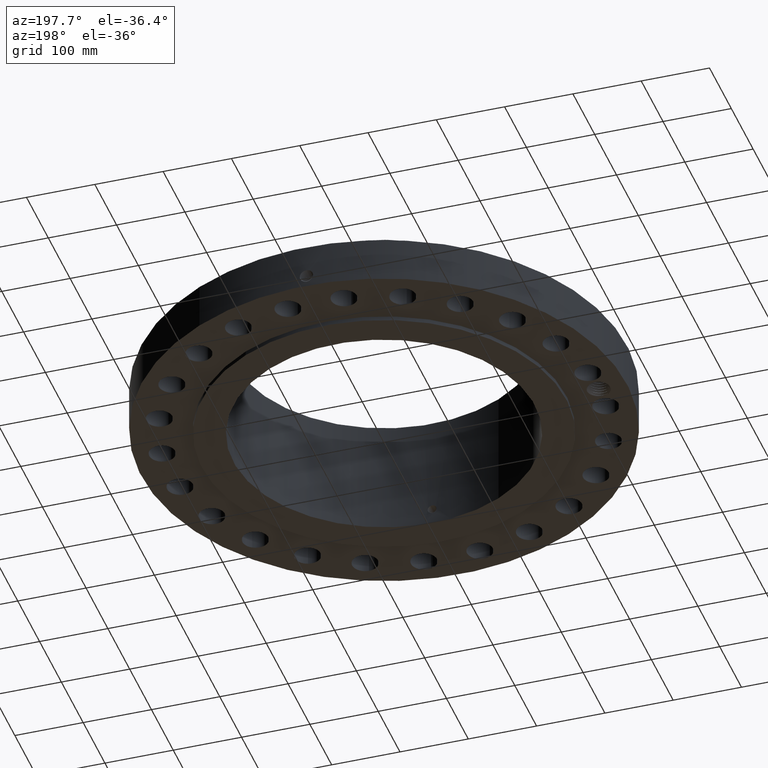
[diagram: clean part render]
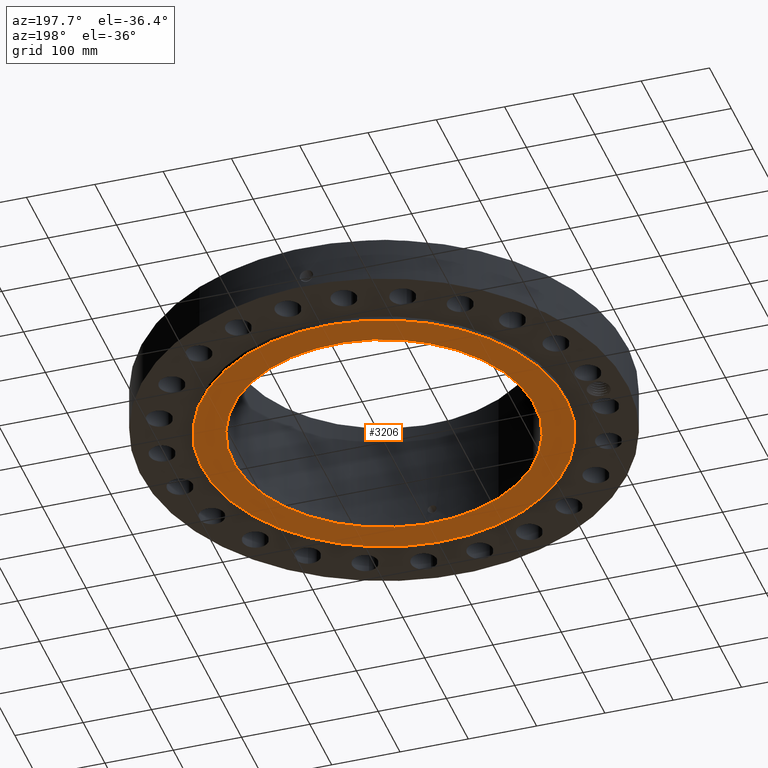
[diagram: same view with one face highlighted and labeled with its STEP entity id]
A machine part, auxiliary view. The second image highlights one B-rep face of the part: STEP entity #3206.
In plain terms, the highlighted planar face has unit normal (0, 0, -1).
Its self-contained STEP definition (entity closure, byte-faithful):
#1727=AXIS2_PLACEMENT_3D('Circle Axis2P3D',#1725,#1726,$) ;
#1753=AXIS2_PLACEMENT_3D('Circle Axis2P3D',#1751,#1752,$) ;
#3182=AXIS2_PLACEMENT_3D('Plane Axis2P3D',#3179,#3180,#3181) ;
#3190=AXIS2_PLACEMENT_3D('Circle Axis2P3D',#3188,#3189,$) ;
#3199=AXIS2_PLACEMENT_3D('Circle Axis2P3D',#3197,#3198,$) ;
#1725=CARTESIAN_POINT('Axis2P3D Location',(0.,0.,1.1189649382E-015)) ;
#1729=CARTESIAN_POINT('Vertex',(5.03396815536,9.21461689989,1.67844740731E-015)) ;
#1731=CARTESIAN_POINT('Vertex',(-5.03396815536,-9.21461689989,1.67844740731E-015)) ;
#1751=CARTESIAN_POINT('Axis2P3D Location',(0.,0.,1.1189649382E-015)) ;
#3179=CARTESIAN_POINT('Axis2P3D Location',(0.,8.68800000003,0.)) ;
#3188=CARTESIAN_POINT('Axis2P3D Location',(0.,0.,0.)) ;
#3192=CARTESIAN_POINT('Vertex',(4.16524907941,7.62443729773,-4.53180799973E-014)) ;
#3194=CARTESIAN_POINT('Vertex',(-4.16524907941,-7.62443729773,-4.53180799973E-014)) ;
#3197=CARTESIAN_POINT('Axis2P3D Location',(0.,0.,0.)) ;
#1726=DIRECTION('Axis2P3D Direction',(0.,0.,-0.0393700787402)) ;
#1752=DIRECTION('Axis2P3D Direction',(0.,0.,-0.0393700787402)) ;
#3180=DIRECTION('Axis2P3D Direction',(0.,0.,-0.0393700787402)) ;
#3181=DIRECTION('Axis2P3D XDirection',(0.0393700787402,0.,0.)) ;
#3189=DIRECTION('Axis2P3D Direction',(0.,0.,-0.0393700787402)) ;
#3198=DIRECTION('Axis2P3D Direction',(0.,0.,-0.0393700787402)) ;
#3185=ORIENTED_EDGE('',*,*,#1755,.T.) ;
#3186=ORIENTED_EDGE('',*,*,#1733,.T.) ;
#3203=ORIENTED_EDGE('',*,*,#3196,.F.) ;
#3204=ORIENTED_EDGE('',*,*,#3201,.F.) ;
#3205=FACE_BOUND('',#3202,.T.) ;
#3206=ADVANCED_FACE('PartBody',(#3187,#3205),#3183,.T.) ;
#1728=CIRCLE('generated circle',#1727,10.5) ;
#1754=CIRCLE('generated circle',#1753,10.5) ;
#3191=CIRCLE('generated circle',#3190,8.68800000003) ;
#3200=CIRCLE('generated circle',#3199,8.68800000003) ;
#1733=EDGE_CURVE('',#1730,#1732,#1728,.T.) ;
#1755=EDGE_CURVE('',#1732,#1730,#1754,.T.) ;
#3196=EDGE_CURVE('',#3193,#3195,#3191,.T.) ;
#3201=EDGE_CURVE('',#3195,#3193,#3200,.T.) ;
#3184=EDGE_LOOP('',(#3185,#3186)) ;
#3202=EDGE_LOOP('',(#3203,#3204)) ;
#3187=FACE_OUTER_BOUND('',#3184,.T.) ;
#3183=PLANE('',#3182) ;
#1730=VERTEX_POINT('',#1729) ;
#1732=VERTEX_POINT('',#1731) ;
#3193=VERTEX_POINT('',#3192) ;
#3195=VERTEX_POINT('',#3194) ;